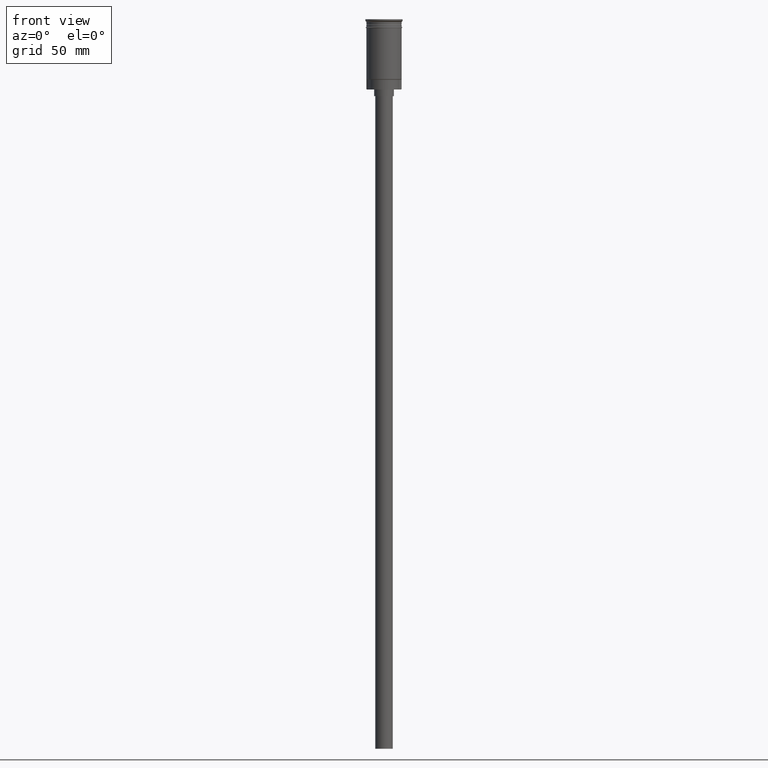
[diagram: clean part render]
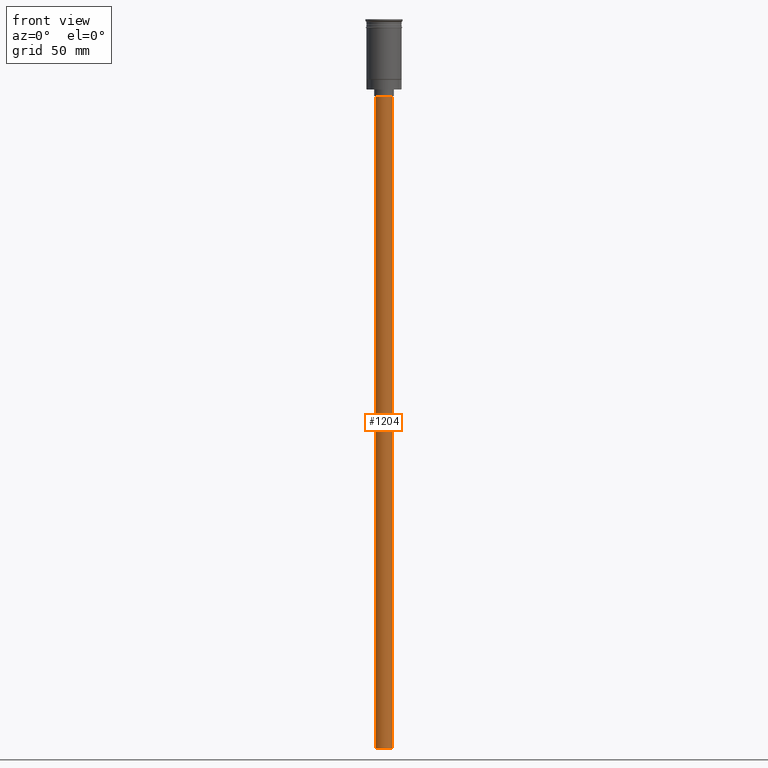
[diagram: same view with one face highlighted and labeled with its STEP entity id]
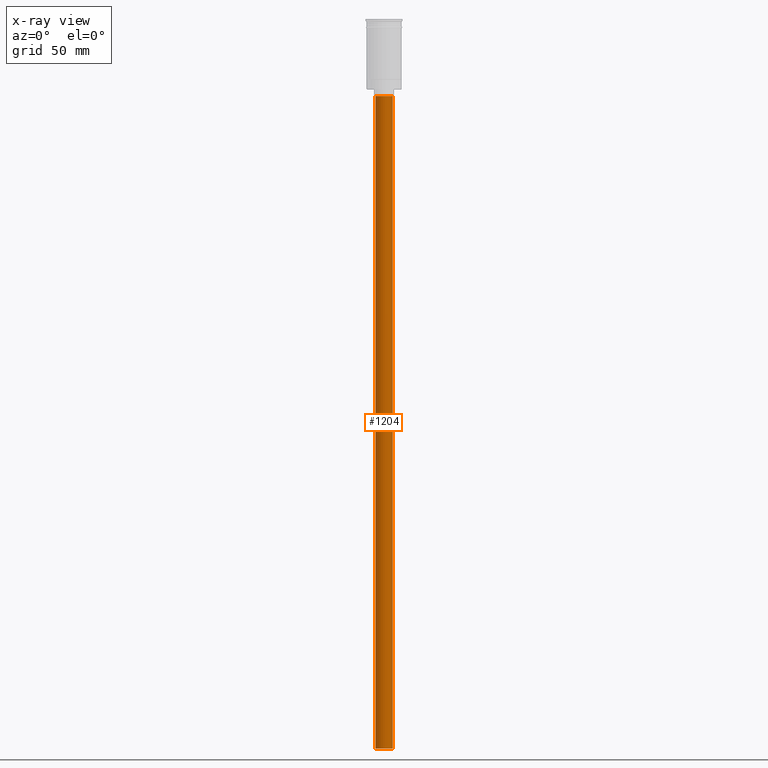
[diagram: x-ray of the same camera — body ghosted, the highlighted face saturated]
A machine part, front view. The second image highlights one B-rep face of the part: STEP entity #1204.
The next image is the same camera in x-ray: the body ghosted, the highlighted face saturated — about 0% of this face is hidden behind the body in this view.
In plain terms, the highlighted cylindrical surface (edge-blend (fillet) strip) has radius 4 mm, axis along (-0, -0, 1).
Its self-contained STEP definition (entity closure, byte-faithful):
#5 = EDGE_CURVE ( 'NONE', #1240, #187, #221, .T. ) ;
#25 = AXIS2_PLACEMENT_3D ( 'NONE', #1376, #148, #366 ) ;
#27 = DIRECTION ( 'NONE',  ( -1.000000000000000000, 0.000000000000000000, 0.000000000000000000 ) ) ;
#49 = CIRCLE ( 'NONE', #78, 4.000000000000000000 ) ;
#78 = AXIS2_PLACEMENT_3D ( 'NONE', #1275, #138, #27 ) ;
#125 = DIRECTION ( 'NONE',  ( -0.000000000000000000, -0.000000000000000000, 1.000000000000000000 ) ) ;
#138 = DIRECTION ( 'NONE',  ( 0.000000000000000000, 0.000000000000000000, -1.000000000000000000 ) ) ;
#148 = DIRECTION ( 'NONE',  ( -0.000000000000000000, -0.000000000000000000, 1.000000000000000000 ) ) ;
#161 = EDGE_CURVE ( 'NONE', #1320, #187, #651, .T. ) ;
#164 = CARTESIAN_POINT ( 'NONE',  ( -4.000000000000000000, 4.898587196589412829E-16, -331.9999999999999432 ) ) ;
#187 = VERTEX_POINT ( 'NONE', #577 ) ;
#221 = CIRCLE ( 'NONE', #328, 4.000000000000000000 ) ;
#243 = LINE ( 'NONE', #994, #1357 ) ;
#328 = AXIS2_PLACEMENT_3D ( 'NONE', #704, #1365, #673 ) ;
#362 = ORIENTED_EDGE ( 'NONE', *, *, #670, .T. ) ;
#366 = DIRECTION ( 'NONE',  ( 1.000000000000000000, 0.000000000000000000, 0.000000000000000000 ) ) ;
#383 = CYLINDRICAL_SURFACE ( 'NONE', #25, 4.000000000000000000 ) ;
#434 = ORIENTED_EDGE ( 'NONE', *, *, #5, .T. ) ;
#540 = ORIENTED_EDGE ( 'NONE', *, *, #1224, .F. ) ;
#577 = CARTESIAN_POINT ( 'NONE',  ( -4.000000000000000000, 4.898587196589412829E-16, -35.00000000000000000 ) ) ;
#600 = VECTOR ( 'NONE', #663, 1000.000000000000000 ) ;
#651 = LINE ( 'NONE', #1157, #600 ) ;
#663 = DIRECTION ( 'NONE',  ( -0.000000000000000000, -0.000000000000000000, 1.000000000000000000 ) ) ;
#670 = EDGE_CURVE ( 'NONE', #1603, #1240, #243, .T. ) ;
#673 = DIRECTION ( 'NONE',  ( -1.000000000000000000, 0.000000000000000000, 0.000000000000000000 ) ) ;
#704 = CARTESIAN_POINT ( 'NONE',  ( 0.000000000000000000, 0.000000000000000000, -35.00000000000000000 ) ) ;
#994 = CARTESIAN_POINT ( 'NONE',  ( 4.000000000000000000, 0.000000000000000000, -331.9999999999999432 ) ) ;
#996 = FACE_OUTER_BOUND ( 'NONE', #1404, .T. ) ;
#1157 = CARTESIAN_POINT ( 'NONE',  ( -4.000000000000000000, 4.898587196589412829E-16, -331.9999999999999432 ) ) ;
#1160 = CARTESIAN_POINT ( 'NONE',  ( 4.000000000000000000, 0.000000000000000000, -35.00000000000000000 ) ) ;
#1204 = ADVANCED_FACE ( 'NONE', ( #996 ), #383, .T. ) ;
#1224 = EDGE_CURVE ( 'NONE', #1603, #1320, #49, .T. ) ;
#1240 = VERTEX_POINT ( 'NONE', #1160 ) ;
#1275 = CARTESIAN_POINT ( 'NONE',  ( 0.000000000000000000, 0.000000000000000000, -331.9999999999999432 ) ) ;
#1280 = ORIENTED_EDGE ( 'NONE', *, *, #161, .F. ) ;
#1320 = VERTEX_POINT ( 'NONE', #164 ) ;
#1357 = VECTOR ( 'NONE', #125, 1000.000000000000000 ) ;
#1365 = DIRECTION ( 'NONE',  ( 0.000000000000000000, 0.000000000000000000, -1.000000000000000000 ) ) ;
#1376 = CARTESIAN_POINT ( 'NONE',  ( 0.000000000000000000, 0.000000000000000000, -331.9999999999999432 ) ) ;
#1400 = CARTESIAN_POINT ( 'NONE',  ( 4.000000000000000000, 0.000000000000000000, -331.9999999999999432 ) ) ;
#1404 = EDGE_LOOP ( 'NONE', ( #1280, #540, #362, #434 ) ) ;
#1603 = VERTEX_POINT ( 'NONE', #1400 ) ;